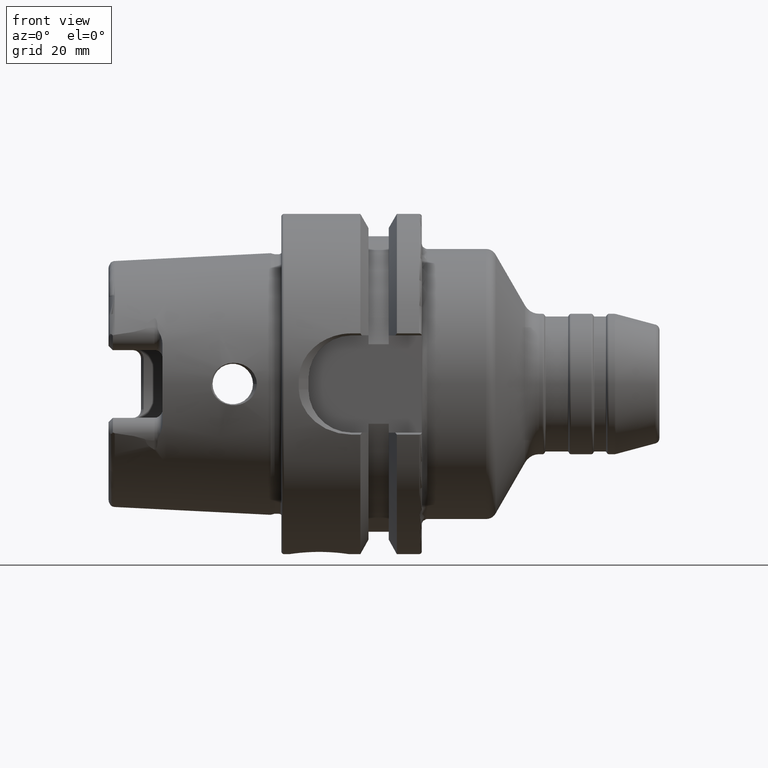
[diagram: clean part render]
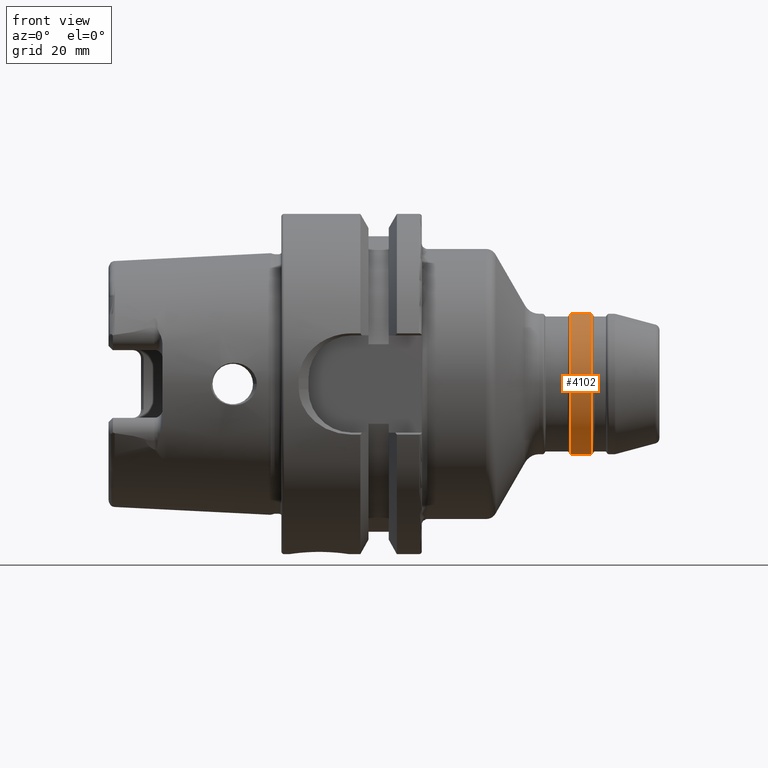
[diagram: same view with one face highlighted and labeled with its STEP entity id]
A machine part, front view. The second image highlights one B-rep face of the part: STEP entity #4102.
In plain terms, the highlighted cylindrical surface (partial cylindrical patch) has radius 13 mm, axis along (1, 0, 0).
Its self-contained STEP definition (entity closure, byte-faithful):
#708=DIRECTION('',(-1.E0,0.E0,0.E0));
#709=VECTOR('',#708,3.729829407783E0);
#710=CARTESIAN_POINT('',(5.736491470389E1,0.E0,-1.3E1));
#711=LINE('',#710,#709);
#712=DIRECTION('',(-1.E0,0.E0,0.E0));
#713=VECTOR('',#712,3.729829407783E0);
#714=CARTESIAN_POINT('',(5.736491470389E1,0.E0,1.3E1));
#715=LINE('',#714,#713);
#716=CARTESIAN_POINT('',(5.736491470389E1,0.E0,0.E0));
#717=DIRECTION('',(-1.E0,0.E0,0.E0));
#718=DIRECTION('',(0.E0,0.E0,-1.E0));
#719=AXIS2_PLACEMENT_3D('',#716,#717,#718);
#741=CARTESIAN_POINT('',(5.363508529611E1,0.E0,0.E0));
#742=DIRECTION('',(-1.E0,0.E0,0.E0));
#743=DIRECTION('',(0.E0,0.E0,-1.E0));
#744=AXIS2_PLACEMENT_3D('',#741,#742,#743);
#3164=CARTESIAN_POINT('',(5.736491470389E1,0.E0,-1.3E1));
#3165=VERTEX_POINT('',#3164);
#3166=CARTESIAN_POINT('',(5.363508529611E1,0.E0,-1.3E1));
#3167=VERTEX_POINT('',#3166);
#3222=CARTESIAN_POINT('',(5.736491470389E1,0.E0,1.3E1));
#3223=VERTEX_POINT('',#3222);
#3224=CARTESIAN_POINT('',(5.363508529611E1,0.E0,1.3E1));
#3225=VERTEX_POINT('',#3224);
#4088=CARTESIAN_POINT('',(2.38E1,0.E0,0.E0));
#4089=DIRECTION('',(1.E0,0.E0,0.E0));
#4090=DIRECTION('',(0.E0,0.E0,1.E0));
#4091=AXIS2_PLACEMENT_3D('',#4088,#4089,#4090);
#4092=CYLINDRICAL_SURFACE('',#4091,1.3E1);
#4094=ORIENTED_EDGE('',*,*,#4093,.T.);
#4096=ORIENTED_EDGE('',*,*,#4095,.T.);
#4098=ORIENTED_EDGE('',*,*,#4097,.F.);
#4099=ORIENTED_EDGE('',*,*,#4081,.F.);
#4100=EDGE_LOOP('',(#4094,#4096,#4098,#4099));
#4101=FACE_OUTER_BOUND('',#4100,.F.);
#4102=ADVANCED_FACE('',(#4101),#4092,.T.);
#720=CIRCLE('',#719,1.3E1);
#745=CIRCLE('',#744,1.3E1);
#4081=EDGE_CURVE('',#3165,#3223,#720,.T.);
#4093=EDGE_CURVE('',#3165,#3167,#711,.T.);
#4095=EDGE_CURVE('',#3167,#3225,#745,.T.);
#4097=EDGE_CURVE('',#3223,#3225,#715,.T.);